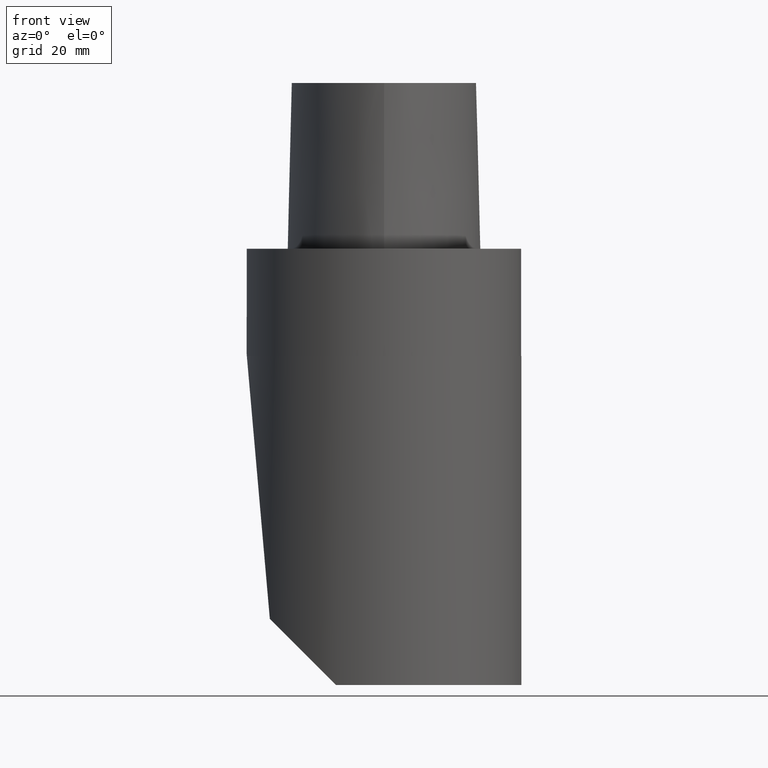
[diagram: clean part render]
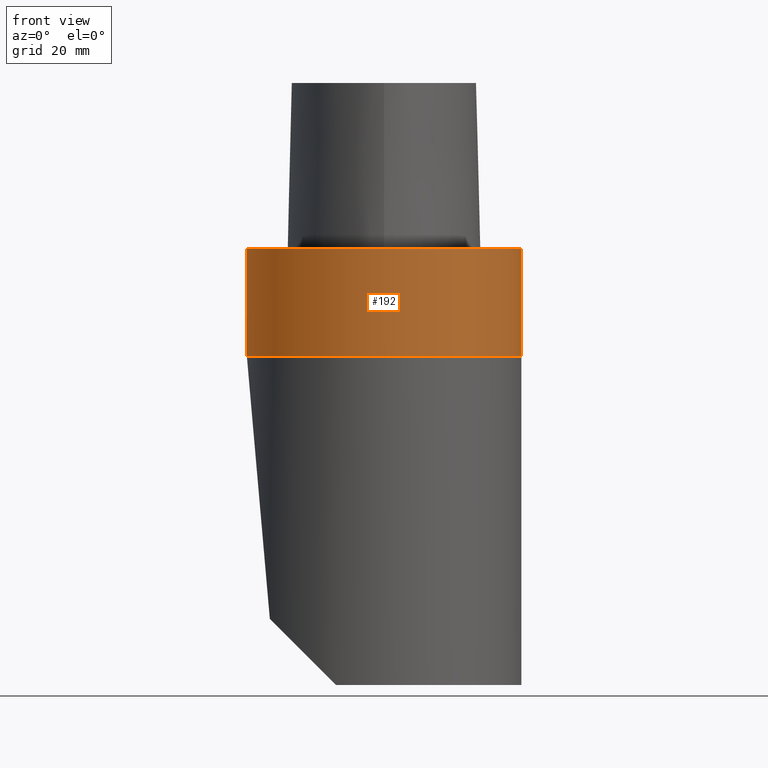
[diagram: same view with one face highlighted and labeled with its STEP entity id]
A machine part, front view. The second image highlights one B-rep face of the part: STEP entity #192.
In plain terms, the highlighted cylindrical surface (bore or boss wall) has radius 31.4925 mm, axis along (0, 0, 1).
Its self-contained STEP definition (entity closure, byte-faithful):
#168=EDGE_CURVE('240[2]',#377,#282,#378,.T.);
#192=ADVANCED_FACE('240[2]',(#407,#408),#409,.T.);
#209=EDGE_CURVE('240[2]',#429,#429,#430,.T.);
#217=EDGE_CURVE('240[2]',#282,#377,#438,.T.);
#282=VERTEX_POINT('',#505);
#377=VERTEX_POINT('',#695);
#378=ELLIPSE('',#696,361.335914389261,31.4924999999998);
#407=FACE_BOUND('',#812,.T.);
#408=FACE_BOUND('',#813,.T.);
#409=CYLINDRICAL_SURFACE('',#814,31.4924999999998);
#429=VERTEX_POINT('',#857);
#430=CIRCLE('',#858,31.4924999999997);
#438=CIRCLE('',#872,31.4924999999999);
#505=CARTESIAN_POINT('',(-31.4461826443,-1.70738201680771,-24.5763842561333));
#695=CARTESIAN_POINT('',(-31.4461826443,1.70738201680771,-24.5763842561333));
#696=AXIS2_PLACEMENT_3D('',#1140,#1141,#1142);
#812=EDGE_LOOP('',(#1187,#1188));
#813=EDGE_LOOP('',(#1189));
#814=AXIS2_PLACEMENT_3D('',#1190,#1191,#1192);
#857=CARTESIAN_POINT('',(3.85671893221476E-015,31.4924999999997,0.0));
#858=AXIS2_PLACEMENT_3D('',#1222,#1223,#1224);
#872=AXIS2_PLACEMENT_3D('',#1230,#1231,#1232);
#1140=CARTESIAN_POINT('',(-2.35137020710886E-014,-5.6843418860808E-014,-384.007896602674));
#1141=DIRECTION('',(0.996194698091746,-1.11325164696239E-016,0.0871557427476567));
#1142=DIRECTION('',(-0.0871557427476567,1.32672164972885E-016,0.996194698091746));
#1187=ORIENTED_EDGE('',*,*,#168,.T.);
#1188=ORIENTED_EDGE('',*,*,#217,.T.);
#1189=ORIENTED_EDGE('',*,*,#209,.F.);
#1190=CARTESIAN_POINT('',(-7.52434757847224E-016,0.0,-12.2881921280666));
#1191=DIRECTION('',(6.12323399573677E-017,1.22464679914735E-016,1.0));
#1192=DIRECTION('',(1.22464679914735E-016,1.0,-1.22464679914735E-016));
#1222=CARTESIAN_POINT('',(0.0,0.0,0.0));
#1223=DIRECTION('',(6.12323399573677E-017,1.22464679914735E-016,1.0));
#1224=DIRECTION('',(1.22464679914735E-016,1.0,-1.22464679914735E-016));
#1230=CARTESIAN_POINT('',(-1.50486951569445E-015,0.0,-24.5763842561333));
#1231=DIRECTION('',(6.12323399573677E-017,1.22464679914735E-016,1.0));
#1232=DIRECTION('',(1.22464679914735E-016,1.0,-1.22464679914735E-016));